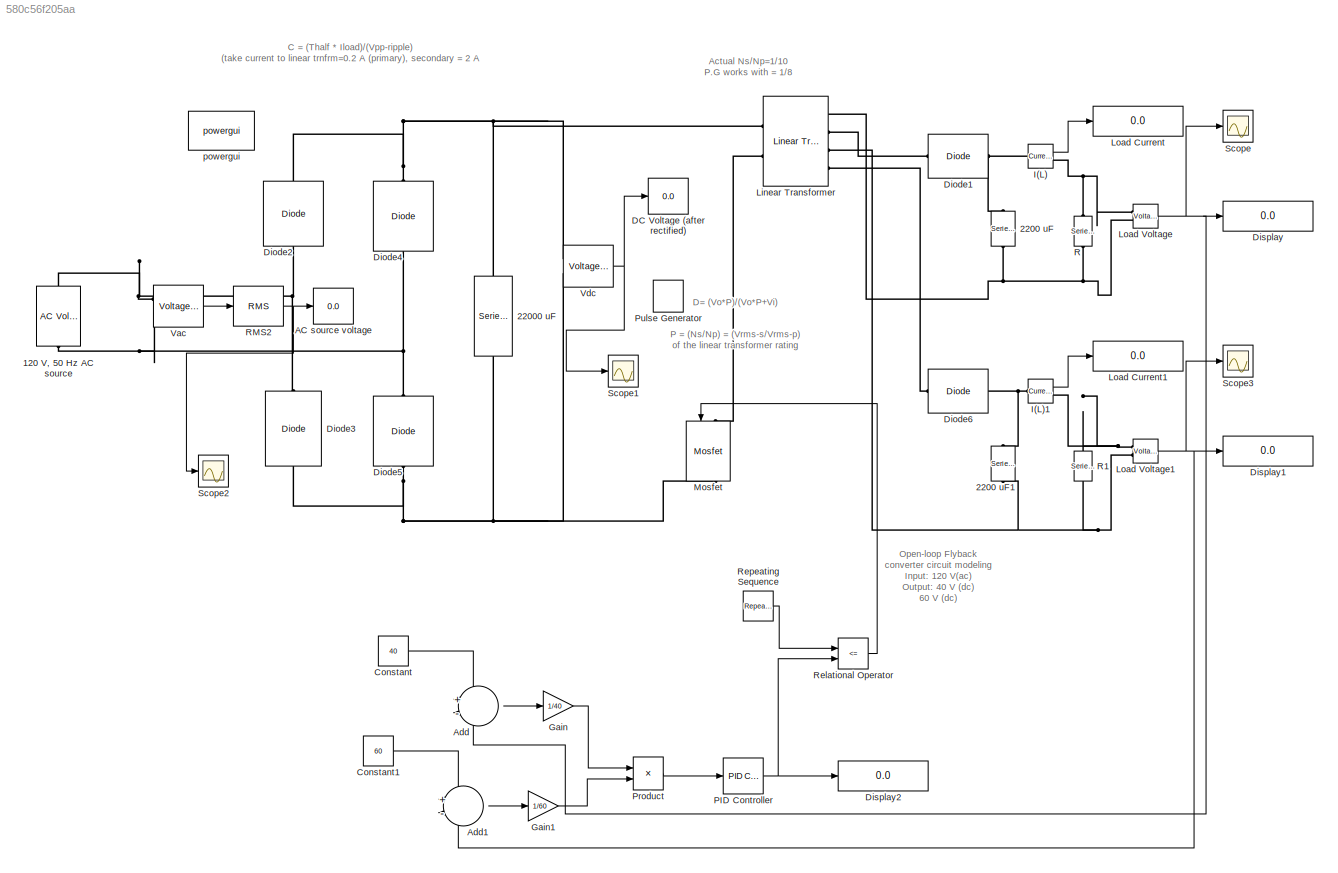
MODEL slx_580c56f205aa
KIND model
CONFIG AbsTol = auto
CONFIG FixedStep = auto
CONFIG MaxStep = auto
CONFIG MinStep = auto
CONFIG RelTol = 1e-3
CONFIG SampleTimeConstraint = Unconstrained
CONFIG Solver = VariableStepAuto
CONFIG SolverMode = Auto
CONFIG SolverName = VariableStepAuto
CONFIG StartTime = 0.0
CONFIG StopTime = 1
BLOCK [Reference] 120 V, 50 Hz AC source  REF=powerlib/Electrical
Sources/AC Voltage Source
  Ports = [0, 0, 0, 0, 0, 1, 1]
  SourceBlock = powerlib/Electrical\nSources/AC Voltage Source
  SourceType = AC Voltage Source
BLOCK [Reference] 2200 uF  REF=powerlib/Elements/Series RLC Branch
  Ports = [0, 0, 0, 0, 0, 1, 1]
  SourceBlock = powerlib/Elements/Series RLC Branch
  SourceType = Series RLC Branch
BLOCK [Reference] 2200 uF1  REF=powerlib/Elements/Series RLC Branch
  Ports = [0, 0, 0, 0, 0, 1, 1]
  SourceBlock = powerlib/Elements/Series RLC Branch
  SourceType = Series RLC Branch
BLOCK [Reference] 22000 uF  REF=powerlib/Elements/Series RLC Branch
  Ports = [0, 0, 0, 0, 0, 1, 1]
  SourceBlock = powerlib/Elements/Series RLC Branch
  SourceType = Series RLC Branch
BLOCK [Display] AC source voltage
  Decimation = 1
  Ports = [1]
BLOCK [Sum] Add
  IconShape = round
  InputSameDT = off
  Inputs = +-
  OutDataTypeStr = Inherit: Inherit via internal rule
  Ports = [2, 1]
  SaturateOnIntegerOverflow = off
BLOCK [Sum] Add1
  IconShape = round
  InputSameDT = off
  Inputs = +-
  OutDataTypeStr = Inherit: Inherit via internal rule
  Ports = [2, 1]
  SaturateOnIntegerOverflow = off
BLOCK [Constant] Constant
  Value = 40
BLOCK [Constant] Constant1
  Value = 60
BLOCK [Display] DC Voltage (after rectified)
  Decimation = 1
  Ports = [1]
BLOCK [Reference] Diode1  REF=powerlib/Power
Electronics/Diode
  Ports = [0, 0, 0, 0, 0, 1, 1]
  SourceBlock = powerlib/Power\nElectronics/Diode
  SourceType = Diode
BLOCK [Reference] Diode2  REF=powerlib/Power
Electronics/Diode
  Ports = [0, 0, 0, 0, 0, 1, 1]
  SourceBlock = powerlib/Power\nElectronics/Diode
  SourceType = Diode
BLOCK [Reference] Diode3  REF=powerlib/Power
Electronics/Diode
  Ports = [0, 0, 0, 0, 0, 1, 1]
  SourceBlock = powerlib/Power\nElectronics/Diode
  SourceType = Diode
BLOCK [Reference] Diode4  REF=powerlib/Power
Electronics/Diode
  Ports = [0, 0, 0, 0, 0, 1, 1]
  SourceBlock = powerlib/Power\nElectronics/Diode
  SourceType = Diode
BLOCK [Reference] Diode5  REF=powerlib/Power
Electronics/Diode
  Ports = [0, 0, 0, 0, 0, 1, 1]
  SourceBlock = powerlib/Power\nElectronics/Diode
  SourceType = Diode
BLOCK [Reference] Diode6  REF=powerlib/Power
Electronics/Diode
  Ports = [0, 0, 0, 0, 0, 1, 1]
  SourceBlock = powerlib/Power\nElectronics/Diode
  SourceType = Diode
BLOCK [Display] Display
  Decimation = 1
  Ports = [1]
BLOCK [Display] Display1
  Decimation = 1
  Ports = [1]
BLOCK [Display] Display2
  Decimation = 1
  Ports = [1]
BLOCK [Gain] Gain
  Gain = 1/40
  OutDataTypeStr = Inherit: Inherit via internal rule
  ParamDataTypeStr = Inherit: Inherit via internal rule
  SaturateOnIntegerOverflow = off
BLOCK [Gain] Gain1
  Gain = 1/60
  OutDataTypeStr = Inherit: Inherit via internal rule
  ParamDataTypeStr = Inherit: Inherit via internal rule
  SaturateOnIntegerOverflow = off
BLOCK [Reference] I(L)  REF=powerlib/Measurements/Current Measurement
  Ports = [0, 1, 0, 0, 0, 1, 1]
  SourceBlock = powerlib/Measurements/Current Measurement
  SourceType = Current Measurement
  UserDataPersistent = on
BLOCK [Reference] I(L)1  REF=powerlib/Measurements/Current Measurement
  Ports = [0, 1, 0, 0, 0, 1, 1]
  SourceBlock = powerlib/Measurements/Current Measurement
  SourceType = Current Measurement
  UserDataPersistent = on
BLOCK [Reference] Linear Transformer  REF=powerlib/Elements/Linear Transformer
  Ports = [0, 0, 0, 0, 0, 2, 4]
  SourceBlock = powerlib/Elements/Linear Transformer
  SourceType = Linear Transformer
BLOCK [Display] Load Current
  Decimation = 1
  Ports = [1]
BLOCK [Display] Load Current1
  Decimation = 1
  Ports = [1]
BLOCK [Reference] Load Voltage  REF=powerlib/Measurements/Voltage Measurement
  Ports = [0, 1, 0, 0, 0, 2]
  SourceBlock = powerlib/Measurements/Voltage Measurement
  SourceType = Voltage Measurement
  UserDataPersistent = on
BLOCK [Reference] Load Voltage1  REF=powerlib/Measurements/Voltage Measurement
  Ports = [0, 1, 0, 0, 0, 2]
  SourceBlock = powerlib/Measurements/Voltage Measurement
  SourceType = Voltage Measurement
  UserDataPersistent = on
BLOCK [Reference] Mosfet  REF=powerlib/Power
Electronics/Mosfet
  Ports = [1, 1, 0, 0, 0, 1, 1]
  SourceBlock = powerlib/Power\nElectronics/Mosfet
  SourceType = Mosfet
BLOCK [Reference] PID Controller  REF=simulink/Continuous/PID Controller
  Ports = [1, 1]
  SourceBlock = simulink/Continuous/PID Controller
  SourceType = PID 1dof
BLOCK [Product] Product
  InputSameDT = off
  OutDataTypeStr = Inherit: Inherit via internal rule
  Ports = [2, 1]
  RndMeth = Floor
  SaturateOnIntegerOverflow = off
BLOCK [DiscretePulseGenerator] Pulse Generator
  Period = 1/100e3
  Ports = [0, 1]
  PulseType = Time based
  PulseWidth = 77
BLOCK [Reference] R  REF=powerlib/Elements/Series RLC Branch
  Ports = [0, 0, 0, 0, 0, 1, 1]
  SourceBlock = powerlib/Elements/Series RLC Branch
  SourceType = Series RLC Branch
BLOCK [Reference] R1  REF=powerlib/Elements/Series RLC Branch
  Ports = [0, 0, 0, 0, 0, 1, 1]
  SourceBlock = powerlib/Elements/Series RLC Branch
  SourceType = Series RLC Branch
BLOCK [Reference] RMS2  REF=powerlib_meascontrol/Measurements/RMS
  Ports = [1, 1]
  SourceBlock = powerlib_meascontrol/Measurements/RMS
  SourceType = RMS
BLOCK [RelationalOperator] Relational Operator
  InputSameDT = off
  Operator = <=
  OutDataTypeStr = boolean
  Ports = [2, 1]
BLOCK [Reference] Repeating Sequence  REF=simulink/Sources/Repeating
Sequence
  Ports = [0, 1]
  SourceBlock = simulink/Sources/Repeating\nSequence
  SourceType = Repeating table
BLOCK [Scope] Scope
  Ports = [1]
  ScopeSpecificationString = Simulink.scopes.TimeScopeBlockCfg('CurrentConfiguration', extmgr.ConfigurationSet(extmgr.Configuration('Core','General UI',true),extmgr.Configuration('Core','Source UI',true),extmgr.Configuration('Sources','WiredSimulink',true),extmgr.Configuration('Visuals','Time Domain',true,'SerializedDisplays',{struct('MinYLimReal','-7.70298','MaxYLimReal','69.32685','YLabelReal','','MinYLimMag','0.00000','Max...<+1778ch>
BLOCK [Scope] Scope1
  Ports = [1]
  ScopeSpecificationString = Simulink.scopes.TimeScopeBlockCfg('CurrentConfiguration', extmgr.ConfigurationSet(extmgr.Configuration('Core','General UI',true),extmgr.Configuration('Core','Source UI',true),extmgr.Configuration('Sources','WiredSimulink',true,'DataLoggingVariableName','ScopeData1'),extmgr.Configuration('Visuals','Time Domain',true,'SerializedDisplays',{struct('MinYLimReal','-14.79988','MaxYLimReal','133.19896','Y...<+1511ch>
BLOCK [Scope] Scope2
  Ports = [1]
  ScopeSpecificationString = Simulink.scopes.TimeScopeBlockCfg('CurrentConfiguration', extmgr.ConfigurationSet(extmgr.Configuration('Core','General UI',true),extmgr.Configuration('Core','Source UI',true),extmgr.Configuration('Sources','WiredSimulink',true,'DataLoggingVariableName','ScopeData2'),extmgr.Configuration('Visuals','Time Domain',true,'SerializedDisplays',{struct('MinYLimReal','114.00795','MaxYLimReal','173.92849','Y...<+1377ch>
BLOCK [Scope] Scope3
  Ports = [1]
  ScopeSpecificationString = Simulink.scopes.TimeScopeBlockCfg('CurrentConfiguration', extmgr.ConfigurationSet(extmgr.Configuration('Core','General UI',true),extmgr.Configuration('Core','Source UI',true),extmgr.Configuration('Sources','WiredSimulink',true,'DataLoggingVariableName','ScopeData1'),extmgr.Configuration('Visuals','Time Domain',true,'SerializedDisplays',{struct('MinYLimReal','19.30074','MaxYLimReal','66.82159','YLa...<+1424ch>
BLOCK [Reference] Vac  REF=powerlib/Measurements/Voltage Measurement
  Ports = [0, 1, 0, 0, 0, 2]
  SourceBlock = powerlib/Measurements/Voltage Measurement
  SourceType = Voltage Measurement
  UserDataPersistent = on
BLOCK [Reference] Vdc   REF=powerlib/Measurements/Voltage Measurement
  Ports = [0, 1, 0, 0, 0, 2]
  SourceBlock = powerlib/Measurements/Voltage Measurement
  SourceType = Voltage Measurement
  UserDataPersistent = on
BLOCK [Reference] powergui  REF=powerlib/powergui
  Ports = []
  Priority = 1
  SourceBlock = powerlib/powergui
  SourceType = PSB option menu block
  UserDataPersistent = on
ANNOTATION (root): Open-loop Flyback converter circuit modeling Input: 120 V(ac) Output: 40 V (dc) 60 V (dc)
ANNOTATION (root): C = (T half * I load )/(V pp-ripple ) (take current to linear trnfrm=0.2 A (primary), secondary = 2 A
ANNOTATION (root): Actual Ns/Np=1/10 P.G works with = 1/8
ANNOTATION (root): D= (Vo*P)/(Vo*P+Vi)
ANNOTATION (root): P = (Ns/Np) = (Vrms-s/Vrms-p) of the linear transformer rating
LINE Add1:1 -> Gain1:1
LINE Add:1 -> Gain:1
LINE Constant1:1 -> Add1:1
LINE Constant:1 -> Add:1
LINE Gain1:1 -> Product:2
LINE Gain:1 -> Product:1
LINE I(L)1:1 -> Load Current1:1
LINE I(L):1 -> Load Current:1
NET Load Voltage1:1 -> Add1:2, Display1:1, Scope3:1
NET Load Voltage:1 -> Add:2, Display:1, Scope:1
NET PID Controller:1 -> Display2:1, Relational Operator:2
LINE Product:1 -> PID Controller:1
NET RMS2:1 -> AC source voltage:1, Scope2:1
LINE Relational Operator:1 -> Mosfet:1
LINE Repeating Sequence:1 -> Relational Operator:1
LINE Vac:1 -> RMS2:1
NET Vdc :1 -> DC Voltage (after rectified):1, Scope1:1
PNET net1: 120 V, 50 Hz AC source:LConn1 -- Diode4:LConn1 -- Diode5:RConn1 -- Vac:LConn2
PNET net2: 120 V, 50 Hz AC source:RConn1 -- Diode2:LConn1 -- Diode3:RConn1 -- Vac:LConn1
PNET net3: 2200 uF1:LConn1 -- Diode6:RConn1 -- I(L)1:LConn1
PNET net4: 2200 uF1:RConn1 -- Linear Transformer:RConn3 -- Load Voltage1:LConn2 -- R1:RConn1
PNET net5: 2200 uF:LConn1 -- Diode1:RConn1 -- I(L):LConn1
PNET net6: 2200 uF:RConn1 -- Linear Transformer:RConn1 -- Load Voltage:LConn2 -- R:RConn1
PNET net7: 22000 uF:LConn1 -- Diode2:RConn1 -- Diode4:RConn1 -- Linear Transformer:LConn1 -- Vdc :LConn1
PNET net8: 22000 uF:RConn1 -- Diode3:LConn1 -- Diode5:LConn1 -- Mosfet:RConn1 -- Vdc :LConn2
PLINE Diode1:LConn1 -- Linear Transformer:RConn2
PLINE Diode6:LConn1 -- Linear Transformer:RConn4
PNET net9: I(L)1:RConn1 -- Load Voltage1:LConn1 -- R1:LConn1
PNET net10: I(L):RConn1 -- Load Voltage:LConn1 -- R:LConn1
PLINE Linear Transformer:LConn2 -- Mosfet:LConn1
note: NET lines group one-source signal fan-out (src -> all destinations, sorted); 1:1 wires keep LINE; PNET lines group multi-terminal physical nets as a canonical sorted terminal list (undirected conserving connections); 2-terminal nets keep the pairwise PLINE form
